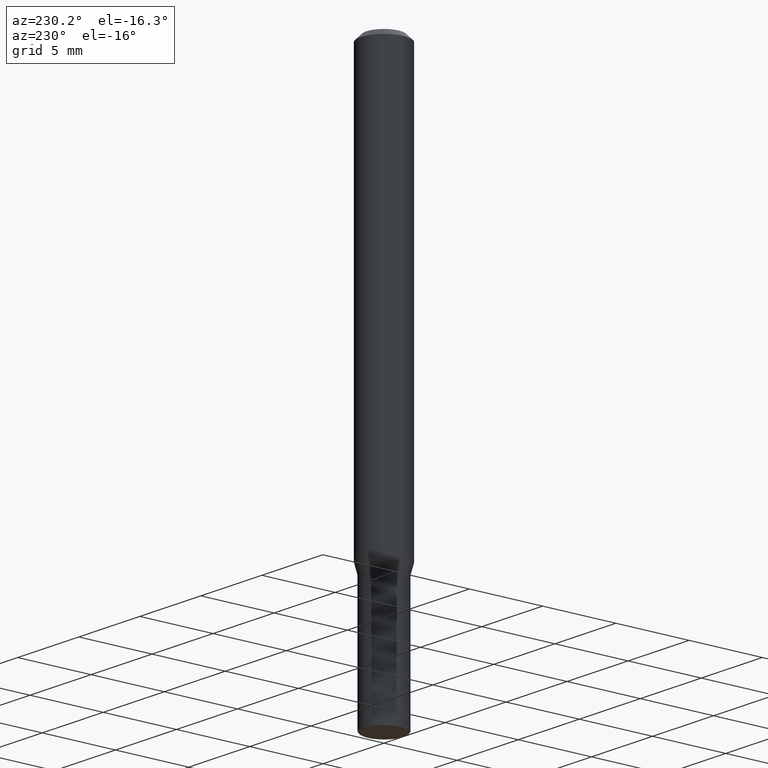
[diagram: clean part render]
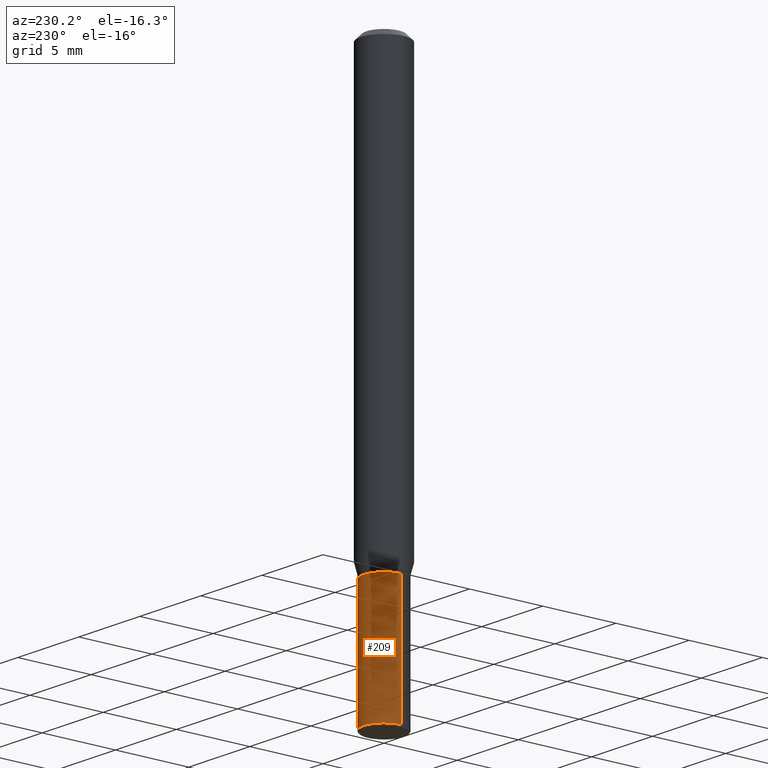
[diagram: same view with one face highlighted and labeled with its STEP entity id]
A machine part, auxiliary view. The second image highlights one B-rep face of the part: STEP entity #209.
In plain terms, the highlighted cylindrical surface (edge-blend (fillet) strip) has radius 1.397 mm, axis along (-0, 0, 1).
Its self-contained STEP definition (entity closure, byte-faithful):
#15 = DIRECTION ( 'NONE',  ( 1.000000000000000000, -6.982962677686262766E-15, 0.000000000000000000 ) ) ;
#22 = CARTESIAN_POINT ( 'NONE',  ( -0.05500000000000018069, -4.261600379340434577E-15, -1.495000000000000107 ) ) ;
#44 = EDGE_CURVE ( 'NONE', #248, #476, #423, .T. ) ;
#51 = VERTEX_POINT ( 'NONE', #22 ) ;
#54 = CARTESIAN_POINT ( 'NONE',  ( 0.05500000000000018069, -5.603827548843249703E-15, -1.495000000000000107 ) ) ;
#56 = DIRECTION ( 'NONE',  ( -2.445468806185136597E-29, 3.491481338843145583E-15, 1.000000000000000000 ) ) ;
#60 = DIRECTION ( 'NONE',  ( -2.445468806185136877E-29, 3.491481338843145188E-15, 1.000000000000000000 ) ) ;
#64 = AXIS2_PLACEMENT_3D ( 'NONE', #139, #141, #275 ) ;
#69 = CYLINDRICAL_SURFACE ( 'NONE', #64, 0.05500000000000009742 ) ;
#75 = DIRECTION ( 'NONE',  ( -2.445468806185136597E-29, 3.491481338843145583E-15, 1.000000000000000000 ) ) ;
#96 = VECTOR ( 'NONE', #113, 39.37007874015748143 ) ;
#112 = ORIENTED_EDGE ( 'NONE', *, *, #180, .T. ) ;
#113 = DIRECTION ( 'NONE',  ( -2.445468806185136877E-29, 3.491481338843145188E-15, 1.000000000000000000 ) ) ;
#119 = CARTESIAN_POINT ( 'NONE',  ( 0.05500000000000009742, -3.840629472727453298E-16, 2.681897226687769380E-30 ) ) ;
#122 = DIRECTION ( 'NONE',  ( 1.000000000000000000, -6.982962677686274599E-15, 0.000000000000000000 ) ) ;
#139 = CARTESIAN_POINT ( 'NONE',  ( 0.000000000000000000, 0.000000000000000000, 0.000000000000000000 ) ) ;
#141 = DIRECTION ( 'NONE',  ( -2.445468806185136597E-29, 3.491481338843145583E-15, 1.000000000000000000 ) ) ;
#144 = VERTEX_POINT ( 'NONE', #54 ) ;
#156 = ORIENTED_EDGE ( 'NONE', *, *, #477, .F. ) ;
#177 = LINE ( 'NONE', #339, #226 ) ;
#180 = EDGE_CURVE ( 'NONE', #51, #476, #177, .T. ) ;
#195 = AXIS2_PLACEMENT_3D ( 'NONE', #490, #75, #122 ) ;
#205 = EDGE_LOOP ( 'NONE', ( #246, #112, #499, #156 ) ) ;
#209 = ADVANCED_FACE ( 'NONE', ( #426 ), #69, .T. ) ;
#226 = VECTOR ( 'NONE', #60, 39.37007874015748143 ) ;
#246 = ORIENTED_EDGE ( 'NONE', *, *, #504, .T. ) ;
#248 = VERTEX_POINT ( 'NONE', #515 ) ;
#275 = DIRECTION ( 'NONE',  ( 1.000000000000000000, -6.982962677686266711E-15, 4.876176775795935793E-29 ) ) ;
#295 = CIRCLE ( 'NONE', #195, 0.05500000000000018069 ) ;
#337 = AXIS2_PLACEMENT_3D ( 'NONE', #376, #56, #15 ) ;
#339 = CARTESIAN_POINT ( 'NONE',  ( -0.05500000000000009742, 3.907985046680557945E-16, -2.705414299640202916E-30 ) ) ;
#376 = CARTESIAN_POINT ( 'NONE',  ( 2.861198503236610065E-29, -4.085033166446480067E-15, -1.170000000000000151 ) ) ;
#403 = CARTESIAN_POINT ( 'NONE',  ( -0.05500000000000000028, -4.261600379340436155E-15, -1.170000000000000151 ) ) ;
#423 = CIRCLE ( 'NONE', #337, 0.05500000000000000028 ) ;
#426 = FACE_OUTER_BOUND ( 'NONE', #205, .T. ) ;
#432 = LINE ( 'NONE', #119, #96 ) ;
#476 = VERTEX_POINT ( 'NONE', #403 ) ;
#477 = EDGE_CURVE ( 'NONE', #144, #248, #432, .T. ) ;
#490 = CARTESIAN_POINT ( 'NONE',  ( 3.655975865246779122E-29, -5.219764601570503141E-15, -1.495000000000000107 ) ) ;
#499 = ORIENTED_EDGE ( 'NONE', *, *, #44, .F. ) ;
#504 = EDGE_CURVE ( 'NONE', #144, #51, #295, .T. ) ;
#515 = CARTESIAN_POINT ( 'NONE',  ( 0.05500000000000000028, -4.469096113719225052E-15, -1.170000000000000151 ) ) ;